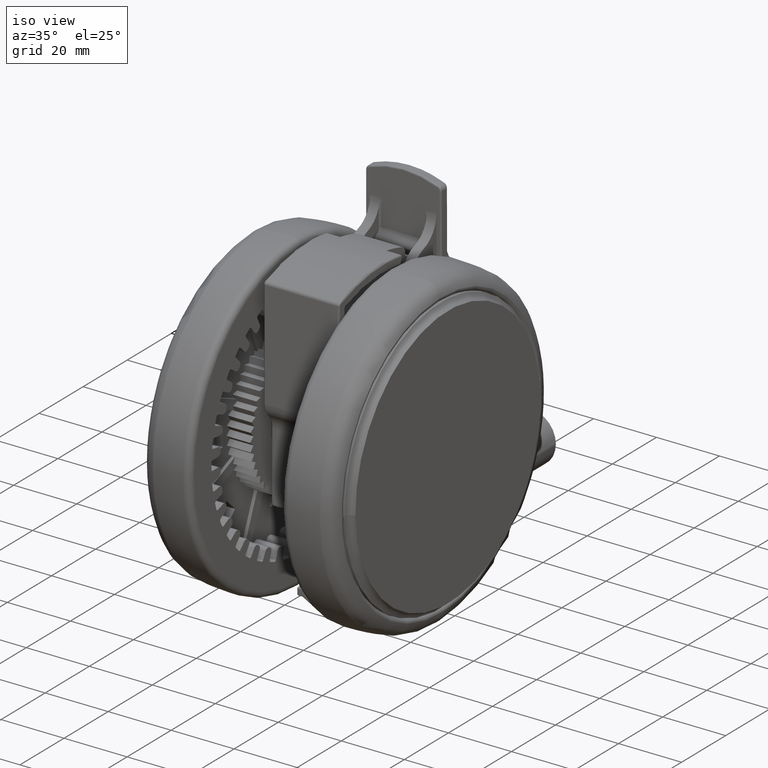
[diagram: clean part render]
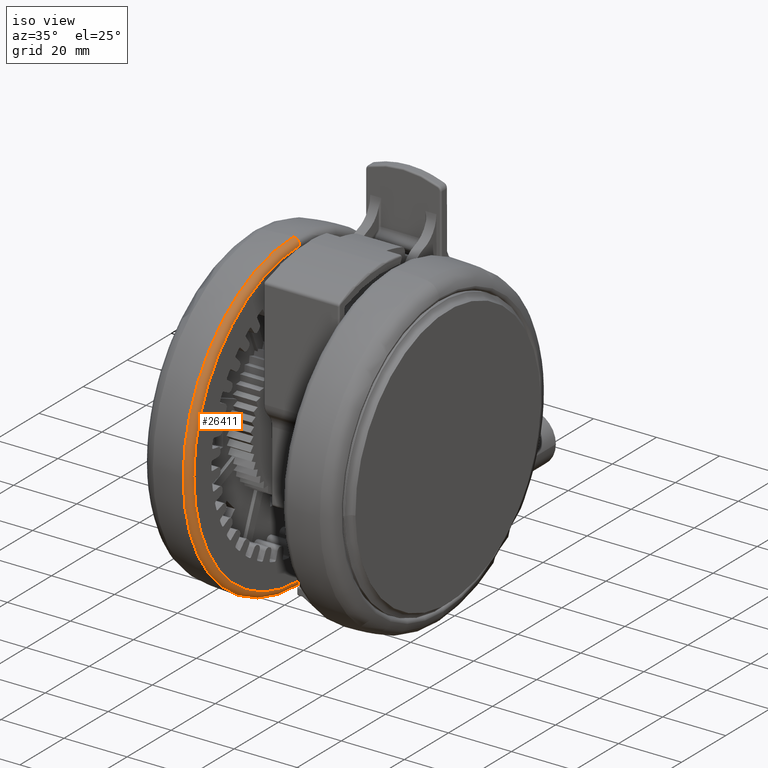
[diagram: same view with one face highlighted and labeled with its STEP entity id]
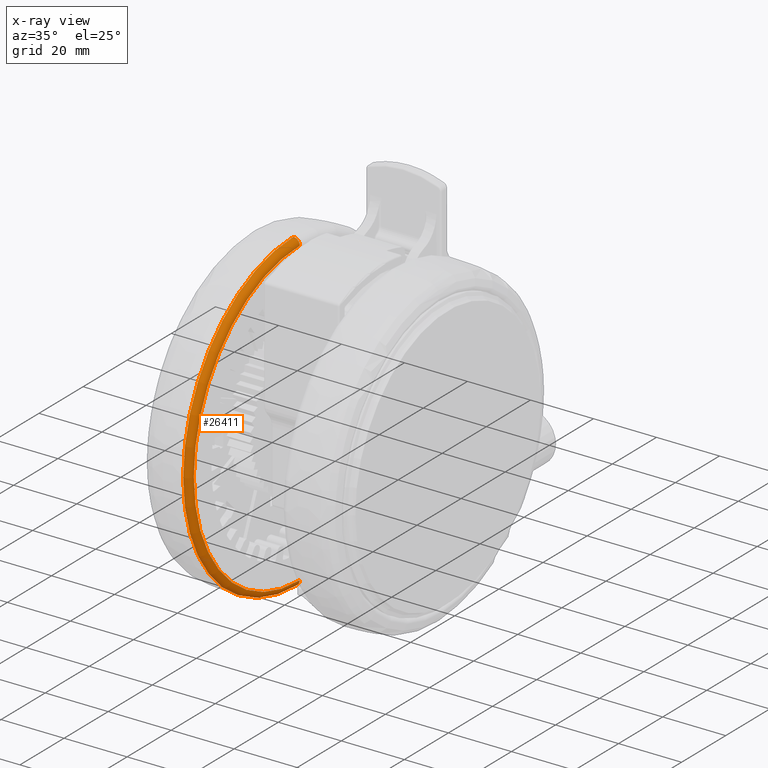
[diagram: x-ray of the same camera — body ghosted, the highlighted face saturated]
A machine part, iso view. The second image highlights one B-rep face of the part: STEP entity #26411.
The next image is the same camera in x-ray: the body ghosted, the highlighted face saturated — about 0% of this face is hidden behind the body in this view.
In plain terms, the highlighted toroidal blend (fillet) surface has major radius 48 mm and minor (blend) radius 2 mm.
Its self-contained STEP definition (entity closure, byte-faithful):
#1081 = VERTEX_POINT ( 'NONE', #33713 ) ;
#4201 = DIRECTION ( 'NONE',  ( -0.02026128721468460300, -0.9997947190500677800, 0.0000000000000000000 ) ) ;
#4256 = DIRECTION ( 'NONE',  ( 0.02026128721468458900, 0.9997947190500678900, 0.0000000000000000000 ) ) ;
#6211 = ORIENTED_EDGE ( 'NONE', *, *, #27137, .T. ) ;
#8065 = VERTEX_POINT ( 'NONE', #36881 ) ;
#11657 = EDGE_CURVE ( 'NONE', #81918, #52486, #47071, .T. ) ;
#16549 = CARTESIAN_POINT ( 'NONE',  ( 0.9725424830765194700, 47.99018331778844300, -49.09999999999984500 ) ) ;
#19923 = EDGE_CURVE ( 'NONE', #8065, #1081, #26498, .T. ) ;
#22890 = DIRECTION ( 'NONE',  ( -0.02026128721468448100, -0.9997947190500678900, 0.0000000000000000000 ) ) ;
#26411 = ADVANCED_FACE ( 'NONE', ( #80721 ), #45222, .T. ) ;
#26498 = CIRCLE ( 'NONE', #81040, 48.00003196817215200 ) ;
#27137 = EDGE_CURVE ( 'NONE', #1081, #52486, #42143, .T. ) ;
#28502 = DIRECTION ( 'NONE',  ( -0.0000000000000000000, 0.0000000000000000000, -1.000000000000000000 ) ) ;
#33713 = CARTESIAN_POINT ( 'NONE',  ( -0.9725423849658322300, -47.99017363423747900, -47.09999999999985200 ) ) ;
#36881 = CARTESIAN_POINT ( 'NONE',  ( 0.9725424830765194700, 47.99018331778844300, -47.09999999999985200 ) ) ;
#38658 = AXIS2_PLACEMENT_3D ( 'NONE', #65142, #39494, #40050 ) ;
#39494 = DIRECTION ( 'NONE',  ( -0.0000000000000000000, 0.0000000000000000000, -1.000000000000000000 ) ) ;
#40050 = DIRECTION ( 'NONE',  ( -0.02026128721468459900, -0.9997947190500677800, 0.0000000000000000000 ) ) ;
#42086 = DIRECTION ( 'NONE',  ( -0.0000000000000000000, 0.0000000000000000000, -1.000000000000000000 ) ) ;
#42134 = DIRECTION ( 'NONE',  ( 0.9997947190500678900, -0.02026128721468460300, -0.0000000000000000000 ) ) ;
#42143 = CIRCLE ( 'NONE', #43516, 1.999999999999999800 ) ;
#43516 = AXIS2_PLACEMENT_3D ( 'NONE', #79890, #42134, #4256 ) ;
#45222 = TOROIDAL_SURFACE ( 'NONE', #38658, 48.00003196817215900, 1.999999999999999100 ) ;
#47071 = CIRCLE ( 'NONE', #48418, 50.00000000000000700 ) ;
#48418 = AXIS2_PLACEMENT_3D ( 'NONE', #79837, #42086, #4201 ) ;
#52486 = VERTEX_POINT ( 'NONE', #74782 ) ;
#59562 = EDGE_LOOP ( 'NONE', ( #62167, #77319, #6211, #65845 ) ) ;
#60676 = DIRECTION ( 'NONE',  ( -0.9997947190500678900, 0.02026128721468448100, 0.0000000000000000000 ) ) ;
#61486 = AXIS2_PLACEMENT_3D ( 'NONE', #16549, #60676, #22890 ) ;
#62167 = ORIENTED_EDGE ( 'NONE', *, *, #71186, .F. ) ;
#64491 = CARTESIAN_POINT ( 'NONE',  ( 1.013064409789570500, 49.98974079427887300, -49.08869196450866900 ) ) ;
#65142 = CARTESIAN_POINT ( 'NONE',  ( 4.905534659038757200E-008, 4.841775480546317600E-006, -49.09999999999984500 ) ) ;
#65845 = ORIENTED_EDGE ( 'NONE', *, *, #11657, .F. ) ;
#66285 = CARTESIAN_POINT ( 'NONE',  ( 4.905534659038757200E-008, 4.841775480546317600E-006, -47.09999999999985200 ) ) ;
#71186 = EDGE_CURVE ( 'NONE', #8065, #81918, #79631, .T. ) ;
#72626 = DIRECTION ( 'NONE',  ( -0.02026128721468460600, -0.9997947190500680000, 0.0000000000000000000 ) ) ;
#74782 = CARTESIAN_POINT ( 'NONE',  ( -1.013064311678883300, -49.98973111072790900, -49.08869196450866900 ) ) ;
#77319 = ORIENTED_EDGE ( 'NONE', *, *, #19923, .T. ) ;
#79631 = CIRCLE ( 'NONE', #61486, 1.999999999999999800 ) ;
#79837 = CARTESIAN_POINT ( 'NONE',  ( 4.905534659038757200E-008, 4.841775480546317600E-006, -49.08869196450866900 ) ) ;
#79890 = CARTESIAN_POINT ( 'NONE',  ( -0.9725423849658322300, -47.99017363423747900, -49.09999999999984500 ) ) ;
#80721 = FACE_OUTER_BOUND ( 'NONE', #59562, .T. ) ;
#81040 = AXIS2_PLACEMENT_3D ( 'NONE', #66285, #28502, #72626 ) ;
#81918 = VERTEX_POINT ( 'NONE', #64491 ) ;